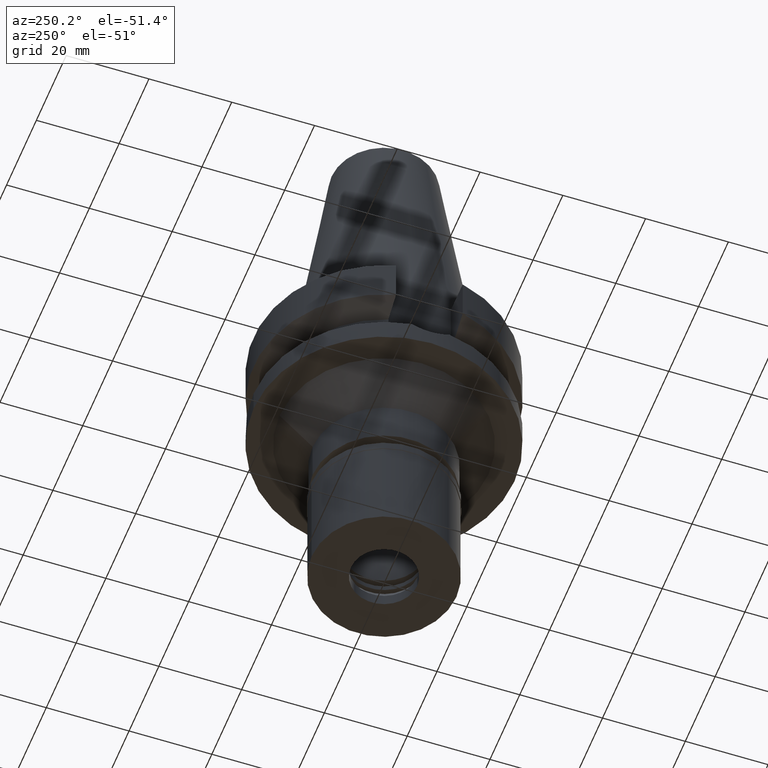
[diagram: clean part render]
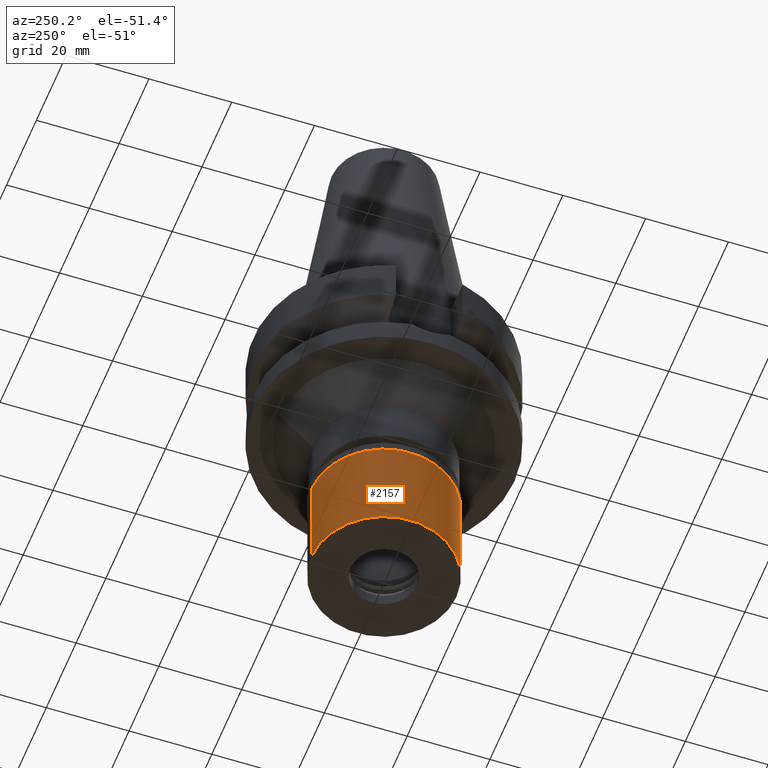
[diagram: same view with one face highlighted and labeled with its STEP entity id]
A machine part, auxiliary view. The second image highlights one B-rep face of the part: STEP entity #2157.
In plain terms, the highlighted cylindrical surface (partial cylindrical patch) has radius 17.5 mm, axis along (0, 0, -1).
Its self-contained STEP definition (entity closure, byte-faithful):
#119 = AXIS2_PLACEMENT_3D ( 'NONE', #1060, #2436, #1750 ) ;
#164 = FACE_OUTER_BOUND ( 'NONE', #386, .T. ) ;
#252 = VECTOR ( 'NONE', #1020, 1000.000000000000000 ) ;
#265 = ORIENTED_EDGE ( 'NONE', *, *, #2420, .T. ) ;
#340 = DIRECTION ( 'NONE',  ( 0.0000000000000000000, -1.000000000000000000, 0.0000000000000000000 ) ) ;
#386 = EDGE_LOOP ( 'NONE', ( #727, #2763, #732, #265 ) ) ;
#582 = EDGE_CURVE ( 'NONE', #2482, #871, #1431, .T. ) ;
#641 = DIRECTION ( 'NONE',  ( 0.0000000000000000000, 0.0000000000000000000, -1.000000000000000000 ) ) ;
#699 = AXIS2_PLACEMENT_3D ( 'NONE', #2200, #1508, #340 ) ;
#727 = ORIENTED_EDGE ( 'NONE', *, *, #582, .T. ) ;
#732 = ORIENTED_EDGE ( 'NONE', *, *, #1693, .T. ) ;
#871 = VERTEX_POINT ( 'NONE', #2177 ) ;
#959 = CARTESIAN_POINT ( 'NONE',  ( 0.0000000000000000000, -17.50000000000000000, -2.100000000000000089 ) ) ;
#988 = LINE ( 'NONE', #1966, #252 ) ;
#1020 = DIRECTION ( 'NONE',  ( 0.0000000000000000000, 0.0000000000000000000, -1.000000000000000000 ) ) ;
#1060 = CARTESIAN_POINT ( 'NONE',  ( 0.0000000000000000000, 0.0000000000000000000, -26.70000000000000284 ) ) ;
#1128 = VERTEX_POINT ( 'NONE', #1531 ) ;
#1157 = VERTEX_POINT ( 'NONE', #1495 ) ;
#1347 = CARTESIAN_POINT ( 'NONE',  ( 0.0000000000000000000, 0.0000000000000000000, 0.0000000000000000000 ) ) ;
#1431 = CIRCLE ( 'NONE', #119, 17.50000000000000000 ) ;
#1457 = VECTOR ( 'NONE', #1677, 1000.000000000000000 ) ;
#1495 = CARTESIAN_POINT ( 'NONE',  ( 0.0000000000000000000, -17.50000000000000000, -2.100000000000000089 ) ) ;
#1508 = DIRECTION ( 'NONE',  ( 0.0000000000000000000, 0.0000000000000000000, -1.000000000000000000 ) ) ;
#1531 = CARTESIAN_POINT ( 'NONE',  ( 0.0000000000000000000, 17.50000000000000000, -2.100000000000000089 ) ) ;
#1677 = DIRECTION ( 'NONE',  ( 0.0000000000000000000, 0.0000000000000000000, -1.000000000000000000 ) ) ;
#1693 = EDGE_CURVE ( 'NONE', #1157, #1128, #2245, .T. ) ;
#1750 = DIRECTION ( 'NONE',  ( 0.0000000000000000000, 1.000000000000000000, 0.0000000000000000000 ) ) ;
#1966 = CARTESIAN_POINT ( 'NONE',  ( 0.0000000000000000000, 17.50000000000000000, -2.100000000000000089 ) ) ;
#2132 = CARTESIAN_POINT ( 'NONE',  ( 0.0000000000000000000, 17.50000000000000000, -26.70000000000000284 ) ) ;
#2157 = ADVANCED_FACE ( 'NONE', ( #164 ), #2963, .T. ) ;
#2177 = CARTESIAN_POINT ( 'NONE',  ( 0.0000000000000000000, -17.50000000000000000, -26.70000000000000284 ) ) ;
#2200 = CARTESIAN_POINT ( 'NONE',  ( 0.0000000000000000000, 0.0000000000000000000, -2.100000000000000089 ) ) ;
#2245 = CIRCLE ( 'NONE', #699, 17.50000000000000000 ) ;
#2420 = EDGE_CURVE ( 'NONE', #1128, #2482, #988, .T. ) ;
#2436 = DIRECTION ( 'NONE',  ( 0.0000000000000000000, 0.0000000000000000000, 1.000000000000000000 ) ) ;
#2482 = VERTEX_POINT ( 'NONE', #2132 ) ;
#2568 = LINE ( 'NONE', #959, #1457 ) ;
#2630 = EDGE_CURVE ( 'NONE', #1157, #871, #2568, .T. ) ;
#2763 = ORIENTED_EDGE ( 'NONE', *, *, #2630, .F. ) ;
#2894 = AXIS2_PLACEMENT_3D ( 'NONE', #1347, #641, #2989 ) ;
#2963 = CYLINDRICAL_SURFACE ( 'NONE', #2894, 17.50000000000000000 ) ;
#2989 = DIRECTION ( 'NONE',  ( 0.0000000000000000000, -1.000000000000000000, 0.0000000000000000000 ) ) ;